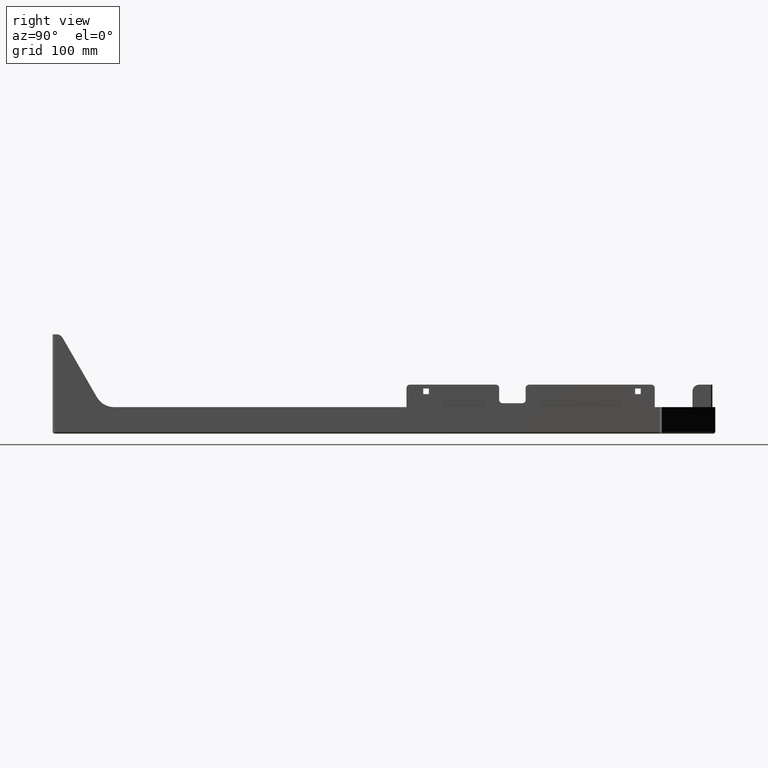
[diagram: clean part render]
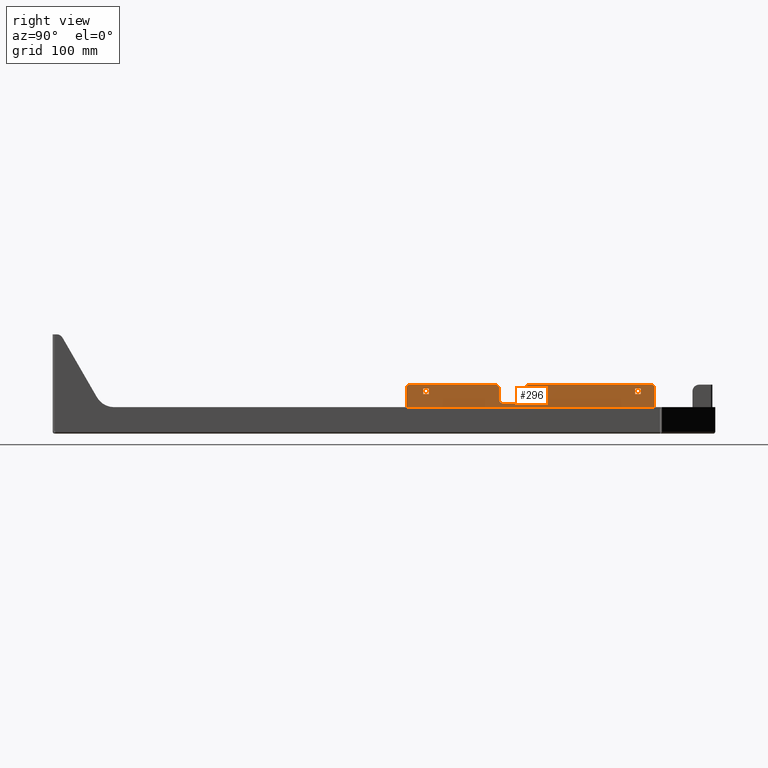
[diagram: same view with one face highlighted and labeled with its STEP entity id]
A machine part, right view. The second image highlights one B-rep face of the part: STEP entity #296.
In plain terms, the highlighted planar face has unit normal (-1, -0, -0).
Its self-contained STEP definition (entity closure, byte-faithful):
#139 = EDGE_CURVE ( 'NONE', #300, #148, #14845, .T. ) ;
#140 = ORIENTED_EDGE ( 'NONE', *, *, #350, .T. ) ;
#141 = ORIENTED_EDGE ( 'NONE', *, *, #139, .T. ) ;
#142 = ORIENTED_EDGE ( 'NONE', *, *, #245, .T. ) ;
#143 = ORIENTED_EDGE ( 'NONE', *, *, #298, .F. ) ;
#144 = EDGE_CURVE ( 'NONE', #297, #291, #14843, .T. ) ;
#145 = VERTEX_POINT ( 'NONE', #14854 ) ;
#146 = EDGE_CURVE ( 'NONE', #294, #297, #14773, .T. ) ;
#147 = EDGE_CURVE ( 'NONE', #145, #370, #14923, .T. ) ;
#148 = VERTEX_POINT ( 'NONE', #14776 ) ;
#149 = ORIENTED_EDGE ( 'NONE', *, *, #146, .F. ) ;
#150 = EDGE_LOOP ( 'NONE', ( #152, #349, #140, #348, #141, #142, #247, #242, #239, #236, #176, #175, #174, #181, #182, #179, #186, #173, #167, #164, #162, #381 ) ) ;
#151 = EDGE_CURVE ( 'NONE', #370, #295, #14913, .T. ) ;
#152 = ORIENTED_EDGE ( 'NONE', *, *, #147, .T. ) ;
#162 = ORIENTED_EDGE ( 'NONE', *, *, #163, .F. ) ;
#163 = EDGE_CURVE ( 'NONE', #380, #165, #7428, .T. ) ;
#164 = ORIENTED_EDGE ( 'NONE', *, *, #169, .T. ) ;
#165 = VERTEX_POINT ( 'NONE', #7420 ) ;
#166 = VERTEX_POINT ( 'NONE', #7418 ) ;
#167 = ORIENTED_EDGE ( 'NONE', *, *, #170, .F. ) ;
#168 = EDGE_CURVE ( 'NONE', #171, #166, #7434, .T. ) ;
#169 = EDGE_CURVE ( 'NONE', #172, #165, #7336, .T. ) ;
#170 = EDGE_CURVE ( 'NONE', #172, #166, #7339, .T. ) ;
#171 = VERTEX_POINT ( 'NONE', #7357 ) ;
#172 = VERTEX_POINT ( 'NONE', #7340 ) ;
#173 = ORIENTED_EDGE ( 'NONE', *, *, #168, .T. ) ;
#174 = ORIENTED_EDGE ( 'NONE', *, *, #185, .T. ) ;
#175 = ORIENTED_EDGE ( 'NONE', *, *, #312, .T. ) ;
#176 = ORIENTED_EDGE ( 'NONE', *, *, #180, .T. ) ;
#177 = EDGE_CURVE ( 'NONE', #184, #290, #7342, .T. ) ;
#178 = VERTEX_POINT ( 'NONE', #7433 ) ;
#179 = ORIENTED_EDGE ( 'NONE', *, *, #183, .T. ) ;
#180 = EDGE_CURVE ( 'NONE', #248, #288, #7214, .T. ) ;
#181 = ORIENTED_EDGE ( 'NONE', *, *, #177, .T. ) ;
#182 = ORIENTED_EDGE ( 'NONE', *, *, #289, .T. ) ;
#183 = EDGE_CURVE ( 'NONE', #371, #178, #7376, .T. ) ;
#184 = VERTEX_POINT ( 'NONE', #7217 ) ;
#185 = EDGE_CURVE ( 'NONE', #303, #184, #7232, .T. ) ;
#186 = ORIENTED_EDGE ( 'NONE', *, *, #246, .F. ) ;
#235 = EDGE_CURVE ( 'NONE', #249, #248, #7725, .T. ) ;
#236 = ORIENTED_EDGE ( 'NONE', *, *, #235, .T. ) ;
#237 = EDGE_LOOP ( 'NONE', ( #382, #1238, #1302, #1225 ) ) ;
#238 = VERTEX_POINT ( 'NONE', #7685 ) ;
#239 = ORIENTED_EDGE ( 'NONE', *, *, #240, .T. ) ;
#240 = EDGE_CURVE ( 'NONE', #238, #249, #7742, .T. ) ;
#241 = EDGE_CURVE ( 'NONE', #244, #238, #7595, .T. ) ;
#242 = ORIENTED_EDGE ( 'NONE', *, *, #241, .T. ) ;
#243 = EDGE_CURVE ( 'NONE', #250, #244, #7561, .T. ) ;
#244 = VERTEX_POINT ( 'NONE', #7622 ) ;
#245 = EDGE_CURVE ( 'NONE', #148, #250, #7558, .T. ) ;
#246 = EDGE_CURVE ( 'NONE', #171, #178, #7820, .T. ) ;
#247 = ORIENTED_EDGE ( 'NONE', *, *, #243, .T. ) ;
#248 = VERTEX_POINT ( 'NONE', #7804 ) ;
#249 = VERTEX_POINT ( 'NONE', #7821 ) ;
#250 = VERTEX_POINT ( 'NONE', #7802 ) ;
#286 = ORIENTED_EDGE ( 'NONE', *, *, #144, .F. ) ;
#288 = VERTEX_POINT ( 'NONE', #7990 ) ;
#289 = EDGE_CURVE ( 'NONE', #290, #371, #7941, .T. ) ;
#290 = VERTEX_POINT ( 'NONE', #7915 ) ;
#291 = VERTEX_POINT ( 'NONE', #7932 ) ;
#293 = VERTEX_POINT ( 'NONE', #7906 ) ;
#294 = VERTEX_POINT ( 'NONE', #7964 ) ;
#295 = VERTEX_POINT ( 'NONE', #7940 ) ;
#296 = ADVANCED_FACE ( 'NONE', ( #7942, #7991, #7979 ), #7980, .F. ) ;
#297 = VERTEX_POINT ( 'NONE', #7994 ) ;
#298 = EDGE_CURVE ( 'NONE', #291, #293, #7914, .T. ) ;
#300 = VERTEX_POINT ( 'NONE', #7938 ) ;
#303 = VERTEX_POINT ( 'NONE', #7944 ) ;
#310 = EDGE_LOOP ( 'NONE', ( #314, #143, #286, #149 ) ) ;
#312 = EDGE_CURVE ( 'NONE', #288, #303, #7984, .T. ) ;
#313 = EDGE_CURVE ( 'NONE', #293, #294, #8001, .T. ) ;
#314 = ORIENTED_EDGE ( 'NONE', *, *, #313, .F. ) ;
#348 = ORIENTED_EDGE ( 'NONE', *, *, #363, .T. ) ;
#349 = ORIENTED_EDGE ( 'NONE', *, *, #151, .T. ) ;
#350 = EDGE_CURVE ( 'NONE', #295, #357, #8020, .T. ) ;
#357 = VERTEX_POINT ( 'NONE', #8280 ) ;
#363 = EDGE_CURVE ( 'NONE', #357, #300, #8274, .T. ) ;
#370 = VERTEX_POINT ( 'NONE', #8251 ) ;
#371 = VERTEX_POINT ( 'NONE', #8425 ) ;
#380 = VERTEX_POINT ( 'NONE', #8360 ) ;
#381 = ORIENTED_EDGE ( 'NONE', *, *, #383, .T. ) ;
#382 = ORIENTED_EDGE ( 'NONE', *, *, #1224, .F. ) ;
#383 = EDGE_CURVE ( 'NONE', #380, #145, #8229, .T. ) ;
#1155 = EDGE_CURVE ( 'NONE', #1264, #1239, #13212, .T. ) ;
#1224 = EDGE_CURVE ( 'NONE', #1263, #1264, #13390, .T. ) ;
#1225 = ORIENTED_EDGE ( 'NONE', *, *, #1155, .F. ) ;
#1232 = EDGE_CURVE ( 'NONE', #1304, #1263, #13533, .T. ) ;
#1238 = ORIENTED_EDGE ( 'NONE', *, *, #1232, .F. ) ;
#1239 = VERTEX_POINT ( 'NONE', #13223 ) ;
#1263 = VERTEX_POINT ( 'NONE', #13802 ) ;
#1264 = VERTEX_POINT ( 'NONE', #13838 ) ;
#1302 = ORIENTED_EDGE ( 'NONE', *, *, #1303, .F. ) ;
#1303 = EDGE_CURVE ( 'NONE', #1239, #1304, #13895, .T. ) ;
#1304 = VERTEX_POINT ( 'NONE', #13888 ) ;
#7203 = AXIS2_PLACEMENT_3D ( 'NONE', #7364, #7363, #7362 ) ;
#7208 = DIRECTION ( 'NONE',  ( 0.0000000000000000000, 0.0000000000000000000, 1.000000000000000000 ) ) ;
#7209 = DIRECTION ( 'NONE',  ( 1.000000000000000000, 1.214306433183765000E-017, -0.0000000000000000000 ) ) ;
#7210 = CARTESIAN_POINT ( 'NONE',  ( 216.9999999999998900, 904.5000000000001100, 68.99999999999997200 ) ) ;
#7212 = AXIS2_PLACEMENT_3D ( 'NONE', #7210, #7209, #7208 ) ;
#7214 = LINE ( 'NONE', #7377, #7373 ) ;
#7217 = CARTESIAN_POINT ( 'NONE',  ( 216.9999999999998300, 909.5000000000002300, 69.00000000000007100 ) ) ;
#7228 = DIRECTION ( 'NONE',  ( 0.0000000000000000000, -3.764349942869679800E-016, 1.000000000000000000 ) ) ;
#7230 = VECTOR ( 'NONE', #7228, 1000.000000000000000 ) ;
#7231 = CARTESIAN_POINT ( 'NONE',  ( 217.0000000000000000, 909.5000000000001100, 74.00000000000008500 ) ) ;
#7232 = LINE ( 'NONE', #7231, #7230 ) ;
#7334 = CARTESIAN_POINT ( 'NONE',  ( 217.0000000000000300, 679.5000000000002300, 51.00000000000017100 ) ) ;
#7336 = CIRCLE ( 'NONE', #7417, 4.999999999999990200 ) ;
#7338 = CARTESIAN_POINT ( 'NONE',  ( 216.9999999999999400, 674.5000000000002300, 46.00000000000019900 ) ) ;
#7339 = LINE ( 'NONE', #7338, #7381 ) ;
#7340 = CARTESIAN_POINT ( 'NONE',  ( 217.0000000000000000, 679.5000000000002300, 46.00000000000004300 ) ) ;
#7342 = CIRCLE ( 'NONE', #7212, 4.999999999999990200 ) ;
#7345 = DIRECTION ( 'NONE',  ( 0.0000000000000000000, 0.0000000000000000000, 1.000000000000000000 ) ) ;
#7351 = DIRECTION ( 'NONE',  ( -1.000000000000000000, -1.214306433183765000E-017, 0.0000000000000000000 ) ) ;
#7352 = CARTESIAN_POINT ( 'NONE',  ( 216.9999999999999100, 709.5000000000003400, 51.00000000000002100 ) ) ;
#7357 = CARTESIAN_POINT ( 'NONE',  ( 216.9999999999999700, 714.5000000000001100, 51.00000000000001400 ) ) ;
#7362 = DIRECTION ( 'NONE',  ( 0.0000000000000000000, 0.0000000000000000000, 1.000000000000000000 ) ) ;
#7363 = DIRECTION ( 'NONE',  ( 1.000000000000000000, 1.214306433183765000E-017, -0.0000000000000000000 ) ) ;
#7364 = CARTESIAN_POINT ( 'NONE',  ( 216.9999999999999700, 719.5000000000002300, 69.00000000000004300 ) ) ;
#7371 = DIRECTION ( 'NONE',  ( 0.0000000000000000000, -3.764349942869679800E-016, 1.000000000000000000 ) ) ;
#7373 = VECTOR ( 'NONE', #7371, 1000.000000000000000 ) ;
#7376 = CIRCLE ( 'NONE', #7203, 4.999999999999990200 ) ;
#7377 = CARTESIAN_POINT ( 'NONE',  ( 216.9999999999999100, 869.5000000000001100, 40.00000000000000700 ) ) ;
#7380 = DIRECTION ( 'NONE',  ( -8.673617379884044700E-018, 1.000000000000000000, -4.276093368282834400E-016 ) ) ;
#7381 = VECTOR ( 'NONE', #7380, 1000.000000000000000 ) ;
#7383 = DIRECTION ( 'NONE',  ( 0.0000000000000000000, 0.0000000000000000000, 1.000000000000000000 ) ) ;
#7384 = DIRECTION ( 'NONE',  ( -1.000000000000000000, -1.214306433183765000E-017, 0.0000000000000000000 ) ) ;
#7417 = AXIS2_PLACEMENT_3D ( 'NONE', #7334, #7384, #7383 ) ;
#7418 = CARTESIAN_POINT ( 'NONE',  ( 217.0000000000000000, 709.5000000000002300, 46.00000000000017100 ) ) ;
#7420 = CARTESIAN_POINT ( 'NONE',  ( 216.9999999999998900, 674.5000000000002300, 51.00000000000019200 ) ) ;
#7422 = DIRECTION ( 'NONE',  ( 0.0000000000000000000, 3.764349942869679800E-016, -1.000000000000000000 ) ) ;
#7424 = VECTOR ( 'NONE', #7422, 1000.000000000000000 ) ;
#7426 = CARTESIAN_POINT ( 'NONE',  ( 216.9999999999998300, 674.5000000000002300, 74.00000000000009900 ) ) ;
#7428 = LINE ( 'NONE', #7426, #7424 ) ;
#7432 = AXIS2_PLACEMENT_3D ( 'NONE', #7352, #7351, #7345 ) ;
#7433 = CARTESIAN_POINT ( 'NONE',  ( 217.0000000000000000, 714.5000000000001100, 69.00000000000008500 ) ) ;
#7434 = CIRCLE ( 'NONE', #7432, 4.999999999999990200 ) ;
#7558 = LINE ( 'NONE', #7797, #7796 ) ;
#7559 = DIRECTION ( 'NONE',  ( 0.0000000000000000000, -3.764349942869679800E-016, 1.000000000000000000 ) ) ;
#7560 = VECTOR ( 'NONE', #7559, 1000.000000000000000 ) ;
#7561 = LINE ( 'NONE', #7814, #7560 ) ;
#7578 = VECTOR ( 'NONE', #7727, 1000.000000000000000 ) ;
#7583 = CARTESIAN_POINT ( 'NONE',  ( 216.9999999999999700, 865.4999999999996600, 40.00000000000013500 ) ) ;
#7595 = LINE ( 'NONE', #7751, #7749 ) ;
#7622 = CARTESIAN_POINT ( 'NONE',  ( 217.0000000000000300, 578.5000000000002300, 40.00000000000024200 ) ) ;
#7685 = CARTESIAN_POINT ( 'NONE',  ( 216.9999999999997700, 865.4999999999998900, 40.00000000000012100 ) ) ;
#7703 = VECTOR ( 'NONE', #7719, 1000.000000000000000 ) ;
#7719 = DIRECTION ( 'NONE',  ( -8.673617379884044700E-018, 1.000000000000000000, -4.276093368282834400E-016 ) ) ;
#7725 = LINE ( 'NONE', #7805, #7703 ) ;
#7727 = DIRECTION ( 'NONE',  ( -5.551115123125797500E-017, 9.652868782072968300E-015, -1.000000000000000000 ) ) ;
#7742 = LINE ( 'NONE', #7583, #7578 ) ;
#7747 = DIRECTION ( 'NONE',  ( -2.255140518769851100E-017, 1.000000000000000000, -3.538835890992689400E-016 ) ) ;
#7749 = VECTOR ( 'NONE', #7747, 1000.000000000000000 ) ;
#7751 = CARTESIAN_POINT ( 'NONE',  ( 217.0000000000000600, 534.5000000000002300, 40.00000000000027700 ) ) ;
#7790 = DIRECTION ( 'NONE',  ( 0.0000000000000000000, -3.764349942869679800E-016, 1.000000000000000000 ) ) ;
#7791 = VECTOR ( 'NONE', #7790, 1000.000000000000000 ) ;
#7792 = CARTESIAN_POINT ( 'NONE',  ( 217.0000000000000000, 714.5000000000000000, 74.00000000000001400 ) ) ;
#7796 = VECTOR ( 'NONE', #7822, 1000.000000000000000 ) ;
#7797 = CARTESIAN_POINT ( 'NONE',  ( 216.9999999999998300, 574.5000000000004500, 37.00000000000017100 ) ) ;
#7802 = CARTESIAN_POINT ( 'NONE',  ( 216.9999999999999700, 578.5000000000004500, 37.00000000000024200 ) ) ;
#7804 = CARTESIAN_POINT ( 'NONE',  ( 216.9999999999999700, 869.4999999999998900, 36.99999999999997900 ) ) ;
#7805 = CARTESIAN_POINT ( 'NONE',  ( 216.9999999999999100, 865.4999999999998900, 37.00000000000006400 ) ) ;
#7814 = CARTESIAN_POINT ( 'NONE',  ( 217.0000000000000300, 578.5000000000002300, 40.00000000000024200 ) ) ;
#7820 = LINE ( 'NONE', #7792, #7791 ) ;
#7821 = CARTESIAN_POINT ( 'NONE',  ( 216.9999999999999100, 865.4999999999998900, 37.00000000000006400 ) ) ;
#7822 = DIRECTION ( 'NONE',  ( -8.673617379884044700E-018, 1.000000000000000000, -4.276093368282834400E-016 ) ) ;
#7895 = DIRECTION ( 'NONE',  ( 8.673617379884044700E-018, -1.000000000000000000, 4.276093368282834400E-016 ) ) ;
#7906 = CARTESIAN_POINT ( 'NONE',  ( 216.9999999999999100, 888.2500000000002300, 68.24999999999998600 ) ) ;
#7908 = DIRECTION ( 'NONE',  ( 5.551115123125793800E-017, -3.817259008886971900E-015, 1.000000000000000000 ) ) ;
#7912 = VECTOR ( 'NONE', #7908, 1000.000000000000000 ) ;
#7913 = CARTESIAN_POINT ( 'NONE',  ( 216.9999999999999100, 888.2500000000002300, 68.24999999999998600 ) ) ;
#7914 = LINE ( 'NONE', #7913, #7912 ) ;
#7915 = CARTESIAN_POINT ( 'NONE',  ( 216.9999999999998300, 904.5000000000001100, 73.99999999999987200 ) ) ;
#7917 = DIRECTION ( 'NONE',  ( 2.255140518769851100E-017, -1.000000000000000000, 3.538835890992689400E-016 ) ) ;
#7930 = AXIS2_PLACEMENT_3D ( 'NONE', #7996, #7933, #7955 ) ;
#7932 = CARTESIAN_POINT ( 'NONE',  ( 216.9999999999999100, 888.2500000000002300, 59.74999999999997200 ) ) ;
#7933 = DIRECTION ( 'NONE',  ( -1.000000000000000000, -1.214306433183764800E-017, -4.571074352381589700E-033 ) ) ;
#7938 = CARTESIAN_POINT ( 'NONE',  ( 217.0000000000000600, 574.5000000000003400, 40.00000000000021300 ) ) ;
#7940 = CARTESIAN_POINT ( 'NONE',  ( 216.9999999999999700, 534.5000000000002300, 69.00000000000018500 ) ) ;
#7941 = LINE ( 'NONE', #7949, #7992 ) ;
#7942 = FACE_BOUND ( 'NONE', #310, .T. ) ;
#7944 = CARTESIAN_POINT ( 'NONE',  ( 216.9999999999999700, 909.5000000000000000, 40.00000000000012100 ) ) ;
#7949 = CARTESIAN_POINT ( 'NONE',  ( 217.0000000000000000, 534.5000000000002300, 74.00000000000014200 ) ) ;
#7955 = DIRECTION ( 'NONE',  ( 0.0000000000000000000, -3.764349942869679800E-016, 1.000000000000000000 ) ) ;
#7964 = CARTESIAN_POINT ( 'NONE',  ( 216.9999999999999700, 879.7500000000001100, 68.24999999999998600 ) ) ;
#7979 = FACE_BOUND ( 'NONE', #237, .T. ) ;
#7980 = PLANE ( 'NONE',  #7930 ) ;
#7981 = DIRECTION ( 'NONE',  ( -2.255140518769851100E-017, 1.000000000000000000, -3.538835890992689400E-016 ) ) ;
#7982 = VECTOR ( 'NONE', #7981, 1000.000000000000000 ) ;
#7983 = CARTESIAN_POINT ( 'NONE',  ( 217.0000000000000600, 534.5000000000002300, 40.00000000000027700 ) ) ;
#7984 = LINE ( 'NONE', #7983, #7982 ) ;
#7990 = CARTESIAN_POINT ( 'NONE',  ( 216.9999999999999100, 869.5000000000001100, 40.00000000000000700 ) ) ;
#7991 = FACE_OUTER_BOUND ( 'NONE', #150, .T. ) ;
#7992 = VECTOR ( 'NONE', #7917, 1000.000000000000000 ) ;
#7994 = CARTESIAN_POINT ( 'NONE',  ( 216.9999999999998300, 879.7499999999997700, 59.75000000000007800 ) ) ;
#7996 = CARTESIAN_POINT ( 'NONE',  ( 217.0000000000000000, 909.5000000000001100, 74.00000000000008500 ) ) ;
#7999 = VECTOR ( 'NONE', #7895, 1000.000000000000000 ) ;
#8000 = CARTESIAN_POINT ( 'NONE',  ( 216.9999999999999700, 879.7500000000001100, 68.24999999999998600 ) ) ;
#8001 = LINE ( 'NONE', #8000, #7999 ) ;
#8003 = DIRECTION ( 'NONE',  ( 0.0000000000000000000, 3.764349942869679800E-016, -1.000000000000000000 ) ) ;
#8020 = LINE ( 'NONE', #8021, #8057 ) ;
#8021 = CARTESIAN_POINT ( 'NONE',  ( 217.0000000000000000, 534.5000000000002300, 74.00000000000014200 ) ) ;
#8057 = VECTOR ( 'NONE', #8003, 1000.000000000000000 ) ;
#8229 = CIRCLE ( 'NONE', #8322, 4.999999999999990200 ) ;
#8251 = CARTESIAN_POINT ( 'NONE',  ( 216.9999999999999400, 539.5000000000003400, 74.00000000000014200 ) ) ;
#8254 = CARTESIAN_POINT ( 'NONE',  ( 216.9999999999999400, 669.5000000000003400, 69.00000000000012800 ) ) ;
#8274 = LINE ( 'NONE', #8339, #8416 ) ;
#8280 = CARTESIAN_POINT ( 'NONE',  ( 217.0000000000000600, 534.5000000000002300, 40.00000000000027700 ) ) ;
#8308 = DIRECTION ( 'NONE',  ( 0.0000000000000000000, 0.0000000000000000000, 1.000000000000000000 ) ) ;
#8311 = DIRECTION ( 'NONE',  ( 1.000000000000000000, 1.214306433183765000E-017, -0.0000000000000000000 ) ) ;
#8322 = AXIS2_PLACEMENT_3D ( 'NONE', #8254, #8311, #8308 ) ;
#8339 = CARTESIAN_POINT ( 'NONE',  ( 217.0000000000000600, 534.5000000000002300, 40.00000000000027700 ) ) ;
#8360 = CARTESIAN_POINT ( 'NONE',  ( 216.9999999999998900, 674.5000000000002300, 69.00000000000008500 ) ) ;
#8414 = DIRECTION ( 'NONE',  ( -2.255140518769851100E-017, 1.000000000000000000, -3.538835890992689400E-016 ) ) ;
#8416 = VECTOR ( 'NONE', #8414, 1000.000000000000000 ) ;
#8425 = CARTESIAN_POINT ( 'NONE',  ( 216.9999999999999700, 719.5000000000002300, 74.00000000000000000 ) ) ;
#13209 = DIRECTION ( 'NONE',  ( -1.665334536937738500E-016, -2.842344415388004700E-015, -1.000000000000000000 ) ) ;
#13210 = VECTOR ( 'NONE', #13209, 1000.000000000000000 ) ;
#13211 = CARTESIAN_POINT ( 'NONE',  ( 217.0000000000000300, 559.7500000000002300, 68.24999999999685900 ) ) ;
#13212 = LINE ( 'NONE', #13211, #13210 ) ;
#13223 = CARTESIAN_POINT ( 'NONE',  ( 217.0000000000000000, 559.7500000000002300, 59.75000000000020600 ) ) ;
#13386 = DIRECTION ( 'NONE',  ( -5.030698080332743000E-017, -1.000000000000000000, -3.786207458666980700E-013 ) ) ;
#13387 = VECTOR ( 'NONE', #13386, 1000.000000000000000 ) ;
#13388 = CARTESIAN_POINT ( 'NONE',  ( 217.0000000000000300, 559.7500000000002300, 68.24999999999685900 ) ) ;
#13390 = LINE ( 'NONE', #13388, #13387 ) ;
#13526 = DIRECTION ( 'NONE',  ( 0.0000000000000000000, -3.764349942869679800E-016, 1.000000000000000000 ) ) ;
#13527 = VECTOR ( 'NONE', #13526, 1000.000000000000000 ) ;
#13532 = CARTESIAN_POINT ( 'NONE',  ( 217.0000000000000000, 568.2500000000002300, 68.25000000000000000 ) ) ;
#13533 = LINE ( 'NONE', #13532, #13527 ) ;
#13802 = CARTESIAN_POINT ( 'NONE',  ( 217.0000000000000000, 568.2500000000002300, 68.25000000000000000 ) ) ;
#13838 = CARTESIAN_POINT ( 'NONE',  ( 217.0000000000000300, 559.7500000000002300, 68.24999999999685900 ) ) ;
#13885 = DIRECTION ( 'NONE',  ( -8.673617379884044700E-018, 1.000000000000000000, -4.276093368282834400E-016 ) ) ;
#13886 = VECTOR ( 'NONE', #13885, 1000.000000000000000 ) ;
#13888 = CARTESIAN_POINT ( 'NONE',  ( 216.9999999999999400, 568.2500000000003400, 59.75000000000006400 ) ) ;
#13894 = CARTESIAN_POINT ( 'NONE',  ( 217.0000000000000000, 559.7500000000002300, 59.75000000000020600 ) ) ;
#13895 = LINE ( 'NONE', #13894, #13886 ) ;
#14770 = DIRECTION ( 'NONE',  ( -1.665334536937738500E-016, -2.842344415388004700E-015, -1.000000000000000000 ) ) ;
#14771 = VECTOR ( 'NONE', #14770, 1000.000000000000000 ) ;
#14772 = CARTESIAN_POINT ( 'NONE',  ( 216.9999999999999700, 879.7500000000001100, 68.24999999999998600 ) ) ;
#14773 = LINE ( 'NONE', #14772, #14771 ) ;
#14776 = CARTESIAN_POINT ( 'NONE',  ( 216.9999999999998300, 574.5000000000004500, 37.00000000000017100 ) ) ;
#14779 = DIRECTION ( 'NONE',  ( -8.673617379884044700E-018, 1.000000000000000000, -4.276093368282834400E-016 ) ) ;
#14788 = CARTESIAN_POINT ( 'NONE',  ( 216.9999999999999400, 539.5000000000003400, 69.00000000000011400 ) ) ;
#14789 = DIRECTION ( 'NONE',  ( 0.0000000000000000000, 3.764349942869679800E-016, -1.000000000000000000 ) ) ;
#14790 = VECTOR ( 'NONE', #14789, 1000.000000000000000 ) ;
#14825 = VECTOR ( 'NONE', #14779, 1000.000000000000000 ) ;
#14843 = LINE ( 'NONE', #14921, #14825 ) ;
#14844 = CARTESIAN_POINT ( 'NONE',  ( 217.0000000000000600, 574.5000000000003400, 40.00000000000021300 ) ) ;
#14845 = LINE ( 'NONE', #14844, #14790 ) ;
#14854 = CARTESIAN_POINT ( 'NONE',  ( 216.9999999999998900, 669.5000000000002300, 74.00000000000009900 ) ) ;
#14856 = DIRECTION ( 'NONE',  ( 0.0000000000000000000, 0.0000000000000000000, 1.000000000000000000 ) ) ;
#14857 = DIRECTION ( 'NONE',  ( 1.000000000000000000, 1.214306433183765000E-017, -0.0000000000000000000 ) ) ;
#14904 = DIRECTION ( 'NONE',  ( 2.255140518769851100E-017, -1.000000000000000000, 3.538835890992689400E-016 ) ) ;
#14906 = VECTOR ( 'NONE', #14904, 1000.000000000000000 ) ;
#14908 = CARTESIAN_POINT ( 'NONE',  ( 217.0000000000000000, 534.5000000000002300, 74.00000000000014200 ) ) ;
#14909 = AXIS2_PLACEMENT_3D ( 'NONE', #14788, #14857, #14856 ) ;
#14913 = CIRCLE ( 'NONE', #14909, 4.999999999999990200 ) ;
#14921 = CARTESIAN_POINT ( 'NONE',  ( 216.9999999999998300, 879.7499999999997700, 59.75000000000007800 ) ) ;
#14923 = LINE ( 'NONE', #14908, #14906 ) ;